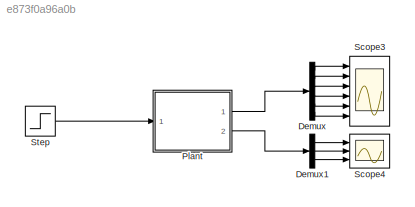
MODEL slx_e873f0a96a0b
KIND model
BLOCK [Demux] Demux
  DisplayOption = bar
  Outputs = 6
  Ports = [1, 6]
BLOCK [Demux] Demux1
  DisplayOption = bar
  Outputs = 3
  Ports = [1, 3]
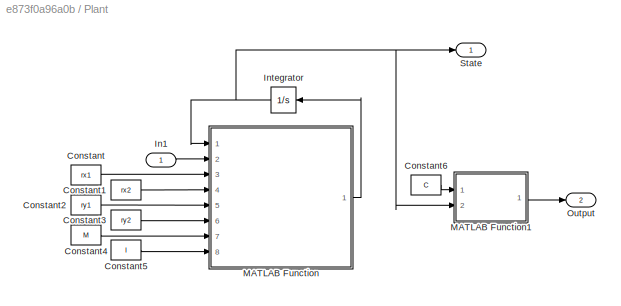
BLOCK [SubSystem] Plant
  FunctionWithSeparateData = off
  MaskHideContents = off
  MinAlgLoopOccurrences = off
  Opaque = off
  Ports = [1, 2]
  PropExecContextOutsideSubsystem = off
  RTWSystemCode = Auto
  RequestExecContextInheritance = off
BLOCK [Constant] Plant/Constant
  Value = rx1
BLOCK [Constant] Plant/Constant1
  Value = rx2
BLOCK [Constant] Plant/Constant2
  Value = ry1
BLOCK [Constant] Plant/Constant3
  Value = ry2
BLOCK [Constant] Plant/Constant4
  Value = M
BLOCK [Constant] Plant/Constant5
  Value = I
BLOCK [Constant] Plant/Constant6
  Value = C
BLOCK [Inport] Plant/In1
  IconDisplay = Port number
BLOCK [Integrator] Plant/Integrator
  InitialCondition = [0 0 0 0 90 0]
  Ports = [1, 1]
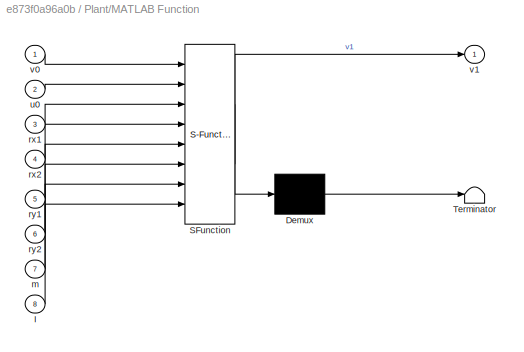
BLOCK [SubSystem] Plant/MATLAB Function
  ErrorFcn = Stateflow.Translate.translate
  FunctionWithSeparateData = off
  MaskHideContents = off
  MinAlgLoopOccurrences = off
  Opaque = off
  PermitHierarchicalResolution = ExplicitOnly
  Ports = [8, 1]
  PropExecContextOutsideSubsystem = off
  RTWSystemCode = Auto
  RequestExecContextInheritance = off
  SFBlockType = MATLAB Function
  TreatAsAtomicUnit = on
BLOCK [Demux] Plant/MATLAB Function/ Demux 
  Outputs = 1
  Ports = [1, 1]
BLOCK [S-Function] Plant/MATLAB Function/ SFunction 
  EnableBusSupport = on
  FunctionName = sf_sfun
  PortCounts = [8 2]
  Ports = [8, 2]
  Tag = Stateflow S-Function PlantTest 1
BLOCK [Terminator] Plant/MATLAB Function/ Terminator 
BLOCK [Inport] Plant/MATLAB Function/I
  IconDisplay = Port number
  Port = 8
BLOCK [Inport] Plant/MATLAB Function/m
  IconDisplay = Port number
  Port = 7
BLOCK [Inport] Plant/MATLAB Function/rx1
  IconDisplay = Port number
  Port = 3
BLOCK [Inport] Plant/MATLAB Function/rx2
  IconDisplay = Port number
  Port = 4
BLOCK [Inport] Plant/MATLAB Function/ry1
  IconDisplay = Port number
  Port = 5
BLOCK [Inport] Plant/MATLAB Function/ry2
  IconDisplay = Port number
  Port = 6
BLOCK [Inport] Plant/MATLAB Function/u0
  IconDisplay = Port number
  Port = 2
BLOCK [Inport] Plant/MATLAB Function/v0
  IconDisplay = Port number
BLOCK [Outport] Plant/MATLAB Function/v1
  IconDisplay = Port number
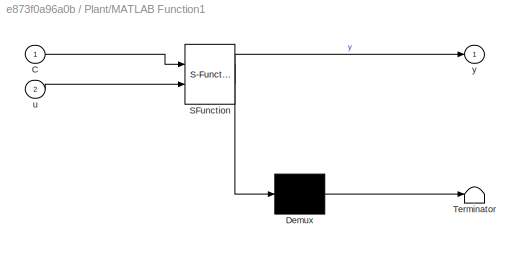
BLOCK [SubSystem] Plant/MATLAB Function1
  ErrorFcn = Stateflow.Translate.translate
  FunctionWithSeparateData = off
  MaskHideContents = off
  MinAlgLoopOccurrences = off
  Opaque = off
  PermitHierarchicalResolution = ExplicitOnly
  Ports = [2, 1]
  PropExecContextOutsideSubsystem = off
  RTWSystemCode = Auto
  RequestExecContextInheritance = off
  SFBlockType = MATLAB Function
  TreatAsAtomicUnit = on
BLOCK [Demux] Plant/MATLAB Function1/ Demux 
  Outputs = 1
  Ports = [1, 1]
BLOCK [S-Function] Plant/MATLAB Function1/ SFunction 
  EnableBusSupport = on
  FunctionName = sf_sfun
  PortCounts = [2 2]
  Ports = [2, 2]
  Tag = Stateflow S-Function PlantTest 3
BLOCK [Terminator] Plant/MATLAB Function1/ Terminator 
BLOCK [Inport] Plant/MATLAB Function1/C
  IconDisplay = Port number
BLOCK [Inport] Plant/MATLAB Function1/u
  IconDisplay = Port number
  Port = 2
BLOCK [Outport] Plant/MATLAB Function1/y
  IconDisplay = Port number
BLOCK [Outport] Plant/Output
  IconDisplay = Port number
  Port = 2
BLOCK [Outport] Plant/State
  IconDisplay = Port number
BLOCK [Scope] Scope3
  DataFormat = StructureWithTime
  Floating = off
  LimitDataPoints = off
  NumInputPorts = 6
  Ports = [6]
  SampleTime = 0
  ShowLegends = off
  YMax = 250000~4.5~5~5~5~5
  YMin = -250000~-4.5~-5~-5~-5~-5
  ZoomMode = yonly
BLOCK [Scope] Scope4
  DataFormat = StructureWithTime
  Floating = off
  LimitDataPoints = off
  NumInputPorts = 3
  Ports = [3]
  SampleTime = 0
  SaveName = ScopeData1
  ShowLegends = off
  YMax = 250000~4.5~5
  YMin = -250000~-4.5~-5
  ZoomMode = yonly
BLOCK [Step] Step
  After = [0;\n10; 0; 10]
  Before = [0;0;0;0]
  SampleTime = 0
LINE Demux1:1 -> Scope4:1
LINE Demux1:2 -> Scope4:2
LINE Demux1:3 -> Scope4:3
LINE Demux:1 -> Scope3:1
LINE Demux:2 -> Scope3:2
LINE Demux:3 -> Scope3:3
LINE Demux:4 -> Scope3:4
LINE Demux:5 -> Scope3:5
LINE Demux:6 -> Scope3:6
LINE Plant/Constant1:1 -> Plant/MATLAB Function:4
LINE Plant/Constant2:1 -> Plant/MATLAB Function:5
LINE Plant/Constant3:1 -> Plant/MATLAB Function:6
LINE Plant/Constant4:1 -> Plant/MATLAB Function:7
LINE Plant/Constant5:1 -> Plant/MATLAB Function:8
LINE Plant/Constant6:1 -> Plant/MATLAB Function1:1
LINE Plant/Constant:1 -> Plant/MATLAB Function:3
LINE Plant/In1:1 -> Plant/MATLAB Function:2
NET Plant/Integrator:1 -> Plant/MATLAB Function1:2, Plant/MATLAB Function:1, Plant/State:1
LINE Plant/MATLAB Function1:1 -> Plant/Output:1
LINE Plant/MATLAB Function:1 -> Plant/Integrator:1
LINE Plant:1 -> Demux:1
LINE Plant:2 -> Demux1:1
LINE Step:1 -> Plant:1
note: NET lines group one-source signal fan-out (src -> all destinations, sorted); 1:1 wires keep LINE
